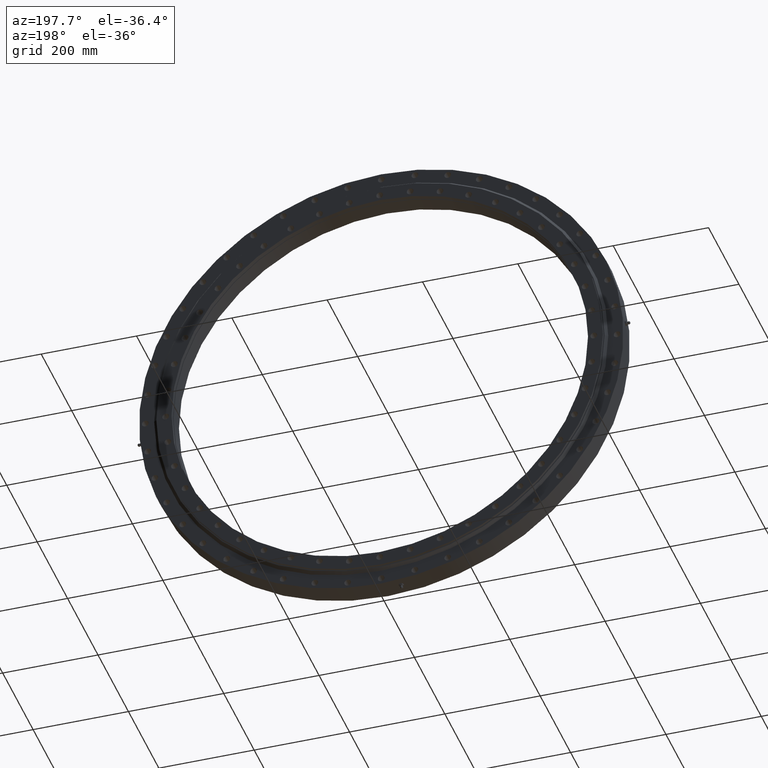
[diagram: clean part render]
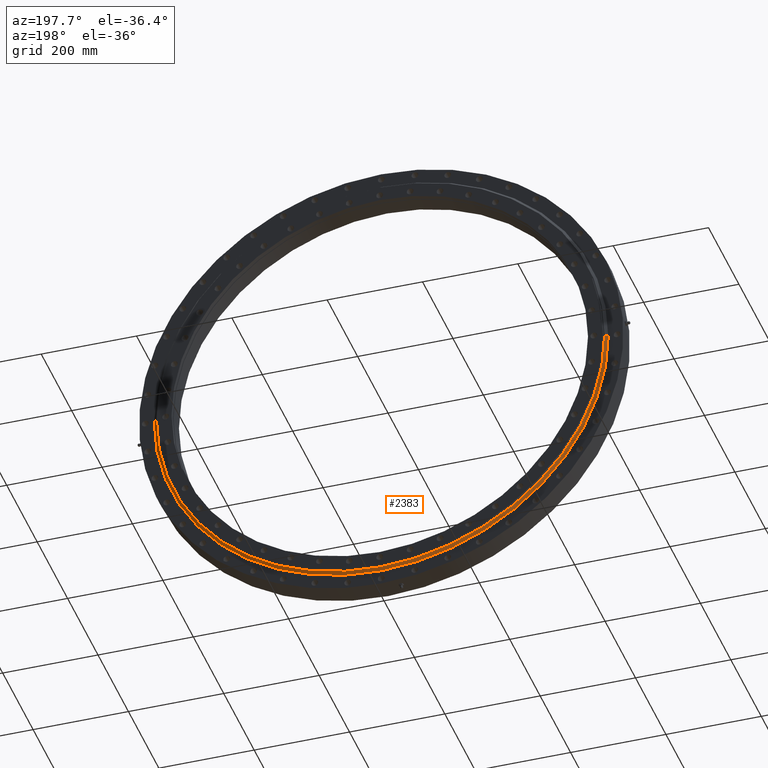
[diagram: same view with one face highlighted and labeled with its STEP entity id]
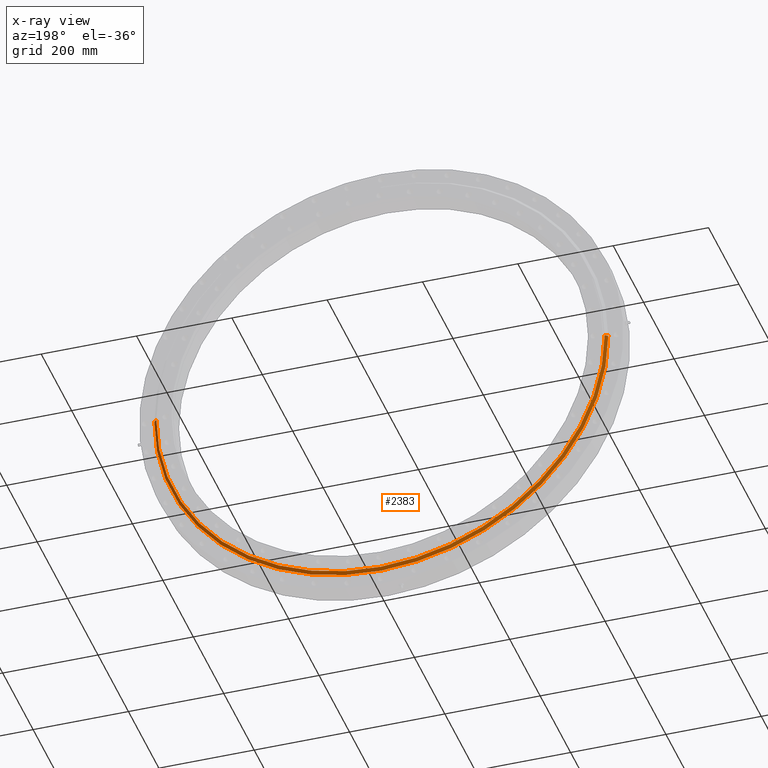
[diagram: x-ray of the same camera — body ghosted, the highlighted face saturated]
A machine part, auxiliary view. The second image highlights one B-rep face of the part: STEP entity #2383.
The next image is the same camera in x-ray: the body ghosted, the highlighted face saturated — about 0% of this face is hidden behind the body in this view.
In plain terms, the highlighted conical surface has half-angle 49.914 deg.
Its self-contained STEP definition (entity closure, byte-faithful):
#139 = CARTESIAN_POINT ( 'NONE',  ( 470.2500000000000000, 23.04999999999991500, 0.0000000000000000000 ) ) ;
#1056 = AXIS2_PLACEMENT_3D ( 'NONE', #4884, #11018, #5746 ) ;
#1068 = EDGE_CURVE ( 'NONE', #11265, #8798, #3279, .T. ) ;
#1710 = EDGE_CURVE ( 'NONE', #8798, #6938, #11183, .T. ) ;
#2333 = CIRCLE ( 'NONE', #3683, 476.2500000000000000 ) ;
#2383 = ADVANCED_FACE ( 'NONE', ( #5669 ), #9522, .T. ) ;
#2439 = DIRECTION ( 'NONE',  ( -1.836909530733565900E-016, -1.000000000000000000, 0.0000000000000000000 ) ) ;
#2560 = DIRECTION ( 'NONE',  ( -0.7650765054985572100, -0.6439393921279518200, 9.369484935616503600E-017 ) ) ;
#2945 = ORIENTED_EDGE ( 'NONE', *, *, #7988, .T. ) ;
#3183 = CARTESIAN_POINT ( 'NONE',  ( -470.2500000000000000, 23.05000000000009000, 5.795640976964849100E-014 ) ) ;
#3279 = CIRCLE ( 'NONE', #1056, 470.2500000000000000 ) ;
#3281 = CARTESIAN_POINT ( 'NONE',  ( -2.489123338632554500E-015, 18.00000000000000000, 0.0000000000000000000 ) ) ;
#3417 = ORIENTED_EDGE ( 'NONE', *, *, #6346, .T. ) ;
#3437 = CARTESIAN_POINT ( 'NONE',  ( -476.2500000000000000, 18.00000000000008500, 5.832380380939269600E-014 ) ) ;
#3683 = AXIS2_PLACEMENT_3D ( 'NONE', #4979, #11109, #5843 ) ;
#3958 = EDGE_LOOP ( 'NONE', ( #6558, #7546, #2945, #3417 ) ) ;
#4884 = CARTESIAN_POINT ( 'NONE',  ( -1.561484025612103200E-015, 23.05000000000000100, 0.0000000000000000000 ) ) ;
#4979 = CARTESIAN_POINT ( 'NONE',  ( -2.489123338632554500E-015, 18.00000000000000000, 0.0000000000000000000 ) ) ;
#5013 = VERTEX_POINT ( 'NONE', #10283 ) ;
#5292 = DIRECTION ( 'NONE',  ( 0.7650765054985571000, -0.6439393921279520400, 0.0000000000000000000 ) ) ;
#5669 = FACE_OUTER_BOUND ( 'NONE', #3958, .T. ) ;
#5746 = DIRECTION ( 'NONE',  ( -1.000000000000000000, 1.844469405610640100E-016, 0.0000000000000000000 ) ) ;
#5843 = DIRECTION ( 'NONE',  ( -1.000000000000000000, 1.821231995776175500E-016, 0.0000000000000000000 ) ) ;
#6346 = EDGE_CURVE ( 'NONE', #5013, #6938, #2333, .T. ) ;
#6499 = VECTOR ( 'NONE', #2560, 1000.000000000000000 ) ;
#6558 = ORIENTED_EDGE ( 'NONE', *, *, #1710, .F. ) ;
#6938 = VERTEX_POINT ( 'NONE', #10052 ) ;
#7546 = ORIENTED_EDGE ( 'NONE', *, *, #1068, .F. ) ;
#7988 = EDGE_CURVE ( 'NONE', #11265, #5013, #10574, .T. ) ;
#8529 = DIRECTION ( 'NONE',  ( 1.000000000000000000, -1.821231995776175500E-016, 0.0000000000000000000 ) ) ;
#8798 = VERTEX_POINT ( 'NONE', #3183 ) ;
#9522 = CONICAL_SURFACE ( 'NONE', #9703, 476.2500000000000000, 0.8711601305813101400 ) ;
#9703 = AXIS2_PLACEMENT_3D ( 'NONE', #3281, #2439, #8529 ) ;
#10052 = CARTESIAN_POINT ( 'NONE',  ( -476.2500000000000000, 18.00000000000008500, 5.832380380939269600E-014 ) ) ;
#10283 = CARTESIAN_POINT ( 'NONE',  ( 476.2500000000000000, 17.99999999999991100, 0.0000000000000000000 ) ) ;
#10298 = VECTOR ( 'NONE', #5292, 1000.000000000000200 ) ;
#10545 = CARTESIAN_POINT ( 'NONE',  ( 476.2500000000000000, 17.99999999999991100, 0.0000000000000000000 ) ) ;
#10574 = LINE ( 'NONE', #10545, #10298 ) ;
#11018 = DIRECTION ( 'NONE',  ( 1.836909530733565900E-016, 1.000000000000000000, -0.0000000000000000000 ) ) ;
#11109 = DIRECTION ( 'NONE',  ( 1.836909530733565900E-016, 1.000000000000000000, -0.0000000000000000000 ) ) ;
#11183 = LINE ( 'NONE', #3437, #6499 ) ;
#11265 = VERTEX_POINT ( 'NONE', #139 ) ;